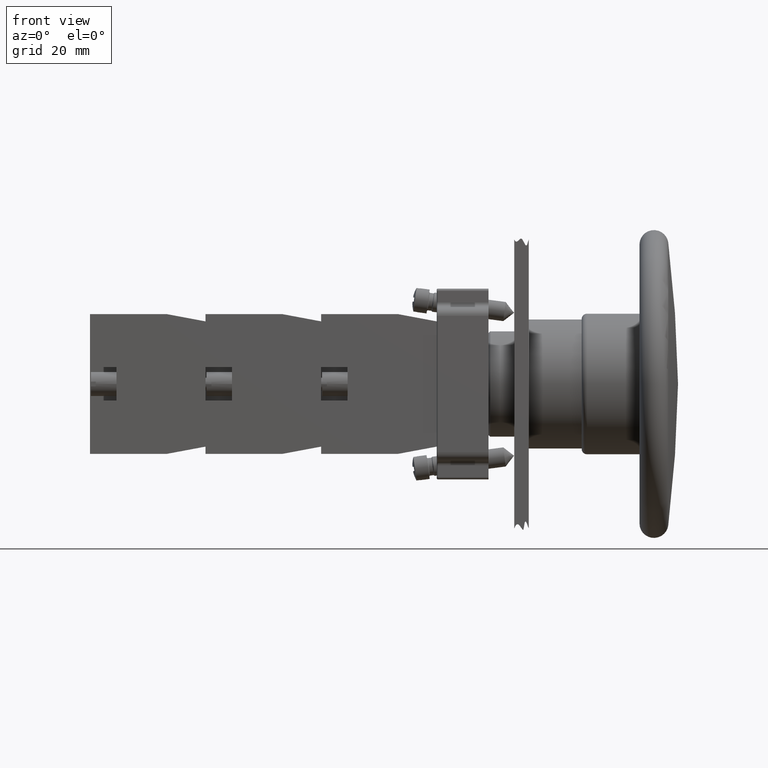
[diagram: clean part render]
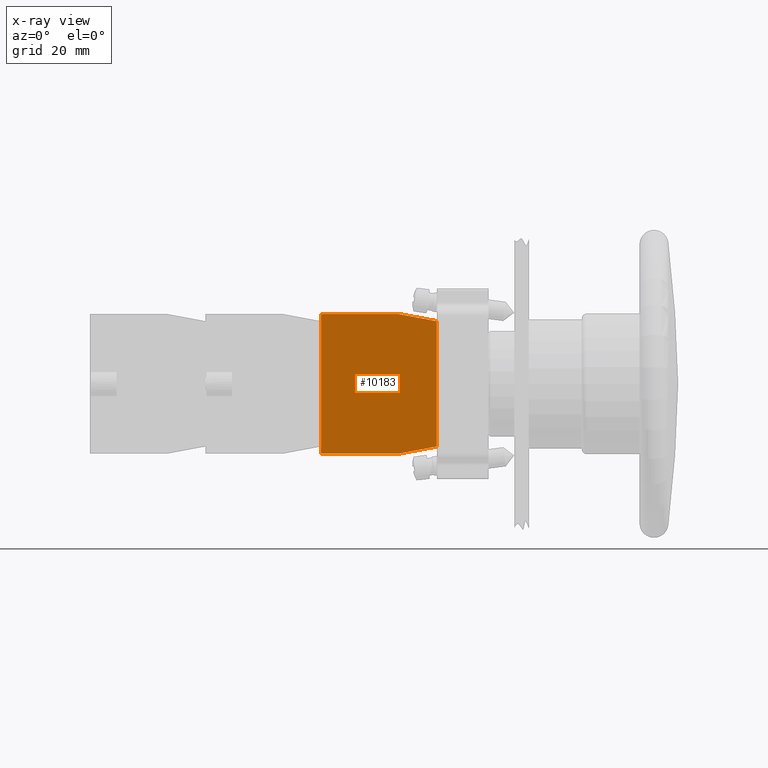
[diagram: x-ray — body ghosted, one internal face saturated and labeled with its STEP entity id]
A machine part, front view, then the same camera in x-ray: the body is ghosted and one INTERNAL B-rep face — a face not visible from any outside direction — is saturated and labeled: STEP entity #10183.
In plain terms, the highlighted planar face has unit normal (-0, -1, 0).
Its self-contained STEP definition (entity closure, byte-faithful):
#8488=CARTESIAN_POINT('',(-44.936741828918471,23.797073323279623,0.0));
#8489=VERTEX_POINT('',#8488);
#8496=CARTESIAN_POINT('',(-44.936741828918457,7.797073323279626,0.0));
#8497=VERTEX_POINT('',#8496);
#8498=CARTESIAN_POINT('',(-44.936741828918457,7.797073323279626,0.0));
#8499=DIRECTION('',(0.0,1.0,0.0));
#8500=VECTOR('',#8499,15.999999999999996);
#8501=LINE('',#8498,#8500);
#8502=EDGE_CURVE('',#8497,#8489,#8501,.T.);
#8679=CARTESIAN_POINT('',(-43.436741828918457,-0.202926676720380,0.0));
#8680=VERTEX_POINT('',#8679);
#8687=CARTESIAN_POINT('',(-17.436741828918457,-0.202926676720377,0.0));
#8688=VERTEX_POINT('',#8687);
#8689=CARTESIAN_POINT('',(-17.436741828918457,-0.202926676720377,0.0));
#8690=DIRECTION('',(-1.0,0.0,0.0));
#8691=VECTOR('',#8690,26.0);
#8692=LINE('',#8689,#8691);
#8693=EDGE_CURVE('',#8688,#8680,#8692,.T.);
#10037=CARTESIAN_POINT('',(-15.936741828918466,23.797073323279626,0.0));
#10038=VERTEX_POINT('',#10037);
#10045=CARTESIAN_POINT('',(-44.936741828918471,23.797073323279623,0.0));
#10046=DIRECTION('',(1.0,0.0,0.0));
#10047=VECTOR('',#10046,29.000000000000007);
#10048=LINE('',#10045,#10047);
#10049=EDGE_CURVE('',#8489,#10038,#10048,.T.);
#10085=CARTESIAN_POINT('',(-15.936741828918466,7.797073323279626,0.0));
#10086=VERTEX_POINT('',#10085);
#10093=CARTESIAN_POINT('',(-15.936741828918466,23.797073323279626,0.0));
#10094=DIRECTION('',(0.0,-1.0,0.0));
#10095=VECTOR('',#10094,16.0);
#10096=LINE('',#10093,#10095);
#10097=EDGE_CURVE('',#10038,#10086,#10096,.T.);
#10125=CARTESIAN_POINT('',(-15.936741828918466,7.797073323279626,0.0));
#10126=DIRECTION('',(-0.184288535050184,-0.982872186934322,0.0));
#10127=VECTOR('',#10126,8.139410298049855);
#10128=LINE('',#10125,#10127);
#10129=EDGE_CURVE('',#10086,#8688,#10128,.T.);
#10142=CARTESIAN_POINT('',(-43.436741828918457,-0.202926676720380,0.0));
#10143=DIRECTION('',(-0.184288535050185,0.982872186934322,0.0));
#10144=VECTOR('',#10143,8.139410298049860);
#10145=LINE('',#10142,#10144);
#10146=EDGE_CURVE('',#8680,#8497,#10145,.T.);
#10170=CARTESIAN_POINT('',(-30.436741828918464,12.124046801833057,0.0));
#10171=DIRECTION('',(0.0,0.0,1.0));
#10172=DIRECTION('',(1.0,0.0,0.0));
#10173=AXIS2_PLACEMENT_3D('',#10170,#10171,#10172);
#10174=PLANE('',#10173);
#10175=ORIENTED_EDGE('',*,*,#10049,.T.);
#10176=ORIENTED_EDGE('',*,*,#10097,.T.);
#10177=ORIENTED_EDGE('',*,*,#10129,.T.);
#10178=ORIENTED_EDGE('',*,*,#8693,.T.);
#10179=ORIENTED_EDGE('',*,*,#10146,.T.);
#10180=ORIENTED_EDGE('',*,*,#8502,.T.);
#10181=EDGE_LOOP('',(#10175,#10176,#10177,#10178,#10179,#10180));
#10182=FACE_OUTER_BOUND('',#10181,.T.);
#10183=ADVANCED_FACE('',(#10182),#10174,.F.);